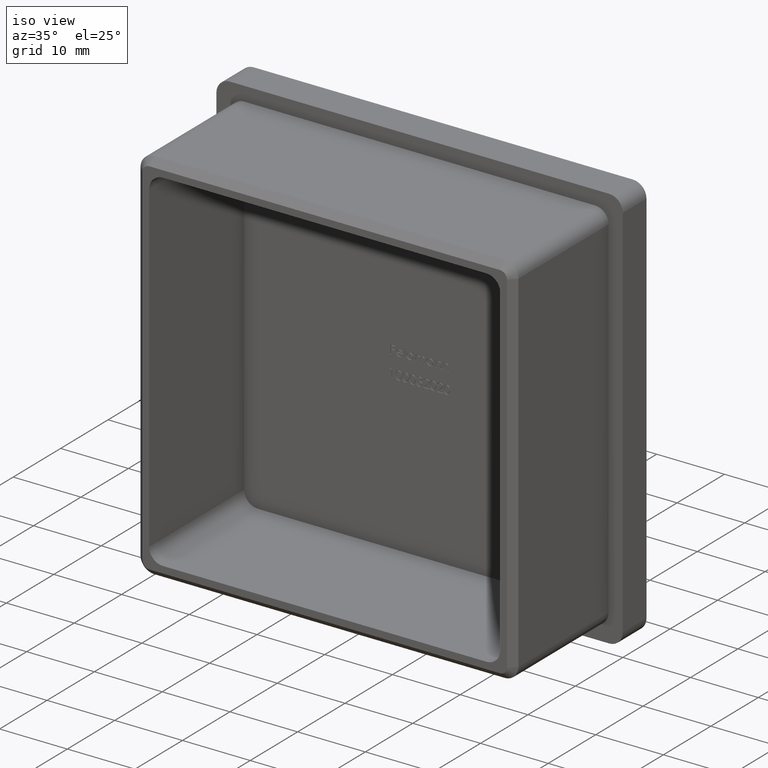
[diagram: clean part render]
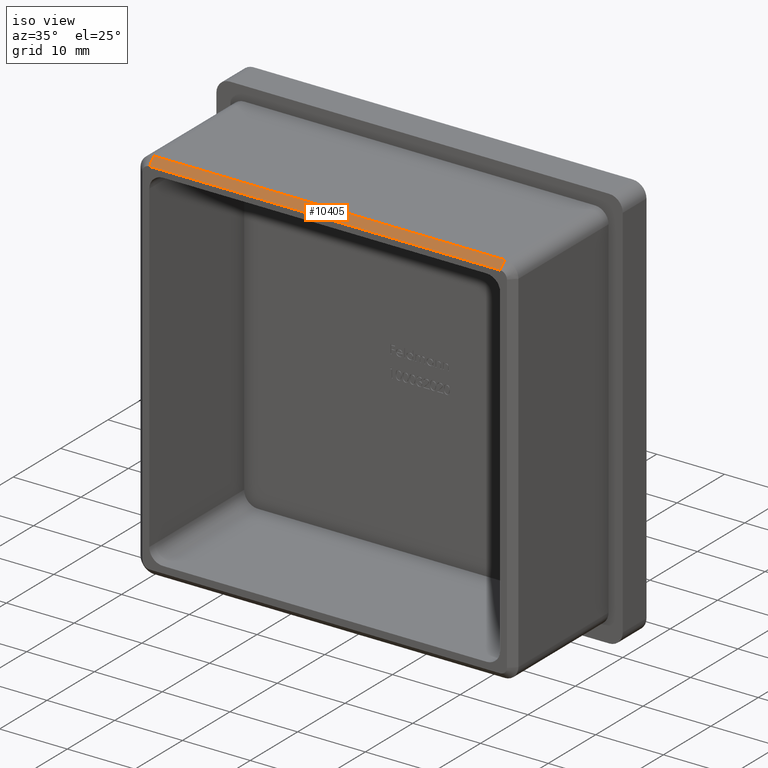
[diagram: same view with one face highlighted and labeled with its STEP entity id]
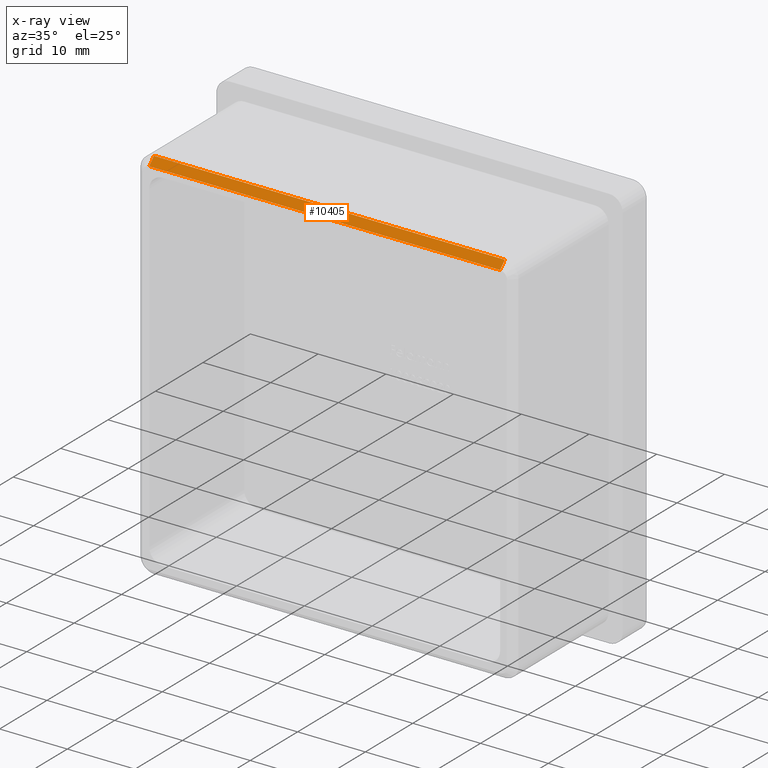
[diagram: x-ray of the same camera — body ghosted, the highlighted face saturated]
A machine part, iso view. The second image highlights one B-rep face of the part: STEP entity #10405.
The next image is the same camera in x-ray: the body ghosted, the highlighted face saturated — about 0% of this face is hidden behind the body in this view.
In plain terms, the highlighted planar face has unit normal (0, -0.7071, 0.7071).
Its self-contained STEP definition (entity closure, byte-faithful):
#226 = VERTEX_POINT ( 'NONE', #8531 ) ;
#388 = FACE_OUTER_BOUND ( 'NONE', #8525, .T. ) ;
#463 = LINE ( 'NONE', #11097, #1383 ) ;
#485 = VECTOR ( 'NONE', #14437, 1000.000000000000100 ) ;
#640 = DIRECTION ( 'NONE',  ( 1.000000000000000000, 0.0000000000000000000, 0.0000000000000000000 ) ) ;
#1383 = VECTOR ( 'NONE', #640, 1000.000000000000000 ) ;
#1691 = EDGE_CURVE ( 'NONE', #11338, #8313, #4375, .T. ) ;
#1707 = DIRECTION ( 'NONE',  ( -1.000000000000000000, 0.0000000000000000000, 0.0000000000000000000 ) ) ;
#1728 = EDGE_CURVE ( 'NONE', #226, #10407, #15067, .T. ) ;
#1746 = LINE ( 'NONE', #6439, #7262 ) ;
#2465 = DIRECTION ( 'NONE',  ( 0.0000000000000000000, -0.7071067811865474600, -0.7071067811865474600 ) ) ;
#3371 = CARTESIAN_POINT ( 'NONE',  ( 0.0000000000000000000, -20.00000000000000000, 26.89999999999999500 ) ) ;
#3802 = EDGE_CURVE ( 'NONE', #11338, #226, #463, .T. ) ;
#3852 = ORIENTED_EDGE ( 'NONE', *, *, #1691, .T. ) ;
#4095 = CARTESIAN_POINT ( 'NONE',  ( 25.89999999999999100, -19.00000000000000000, 27.89999999999999500 ) ) ;
#4189 = VECTOR ( 'NONE', #2465, 1000.000000000000100 ) ;
#4375 = LINE ( 'NONE', #14008, #4189 ) ;
#4552 = DIRECTION ( 'NONE',  ( 0.0000000000000000000, -0.7071067811865475700, 0.7071067811865475700 ) ) ;
#4778 = ORIENTED_EDGE ( 'NONE', *, *, #4886, .F. ) ;
#4886 = EDGE_CURVE ( 'NONE', #10407, #8313, #1746, .T. ) ;
#5725 = ORIENTED_EDGE ( 'NONE', *, *, #3802, .F. ) ;
#5873 = PLANE ( 'NONE',  #9310 ) ;
#6439 = CARTESIAN_POINT ( 'NONE',  ( -25.89999999999999100, -20.00000000000000000, 26.89999999999999500 ) ) ;
#7262 = VECTOR ( 'NONE', #1707, 1000.000000000000000 ) ;
#8313 = VERTEX_POINT ( 'NONE', #12451 ) ;
#8525 = EDGE_LOOP ( 'NONE', ( #3852, #4778, #12278, #5725 ) ) ;
#8531 = CARTESIAN_POINT ( 'NONE',  ( 25.89999999999999100, -19.00000000000000000, 27.89999999999999500 ) ) ;
#9310 = AXIS2_PLACEMENT_3D ( 'NONE', #3371, #4552, #12658 ) ;
#10405 = ADVANCED_FACE ( 'NONE', ( #388 ), #5873, .T. ) ;
#10407 = VERTEX_POINT ( 'NONE', #14935 ) ;
#11097 = CARTESIAN_POINT ( 'NONE',  ( 25.89999999999999100, -19.00000000000000000, 27.89999999999999500 ) ) ;
#11338 = VERTEX_POINT ( 'NONE', #11362 ) ;
#11362 = CARTESIAN_POINT ( 'NONE',  ( -25.89999999999999100, -19.00000000000000000, 27.89999999999999500 ) ) ;
#12278 = ORIENTED_EDGE ( 'NONE', *, *, #1728, .F. ) ;
#12451 = CARTESIAN_POINT ( 'NONE',  ( -25.89999999999999100, -20.00000000000000000, 26.89999999999999500 ) ) ;
#12658 = DIRECTION ( 'NONE',  ( 1.000000000000000000, 0.0000000000000000000, 0.0000000000000000000 ) ) ;
#14008 = CARTESIAN_POINT ( 'NONE',  ( -25.89999999999999100, -19.00000000000000000, 27.89999999999999500 ) ) ;
#14437 = DIRECTION ( 'NONE',  ( 0.0000000000000000000, -0.7071067811865474600, -0.7071067811865474600 ) ) ;
#14935 = CARTESIAN_POINT ( 'NONE',  ( 25.89999999999999100, -20.00000000000000000, 26.89999999999999500 ) ) ;
#15067 = LINE ( 'NONE', #4095, #485 ) ;